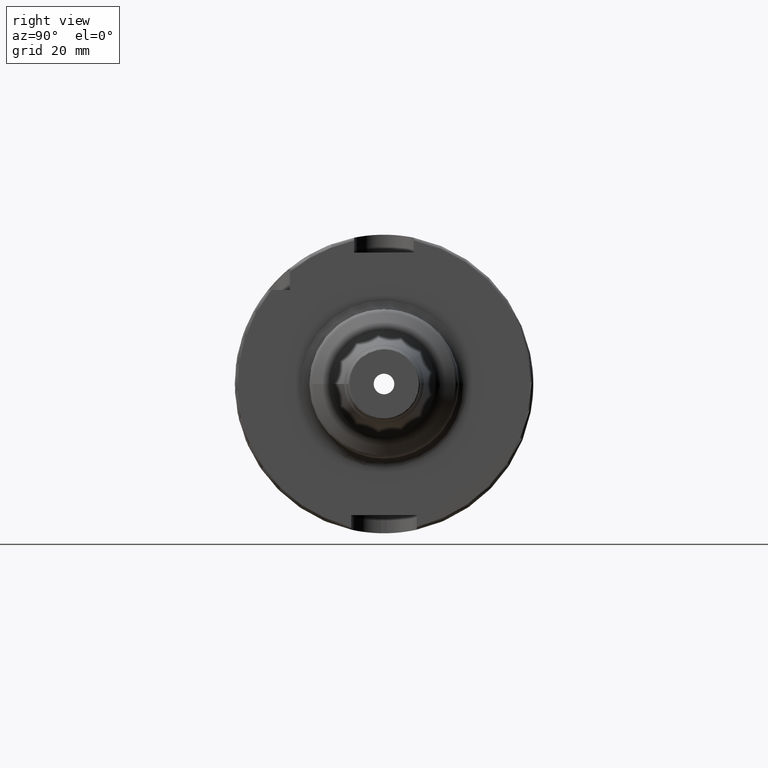
[diagram: clean part render]
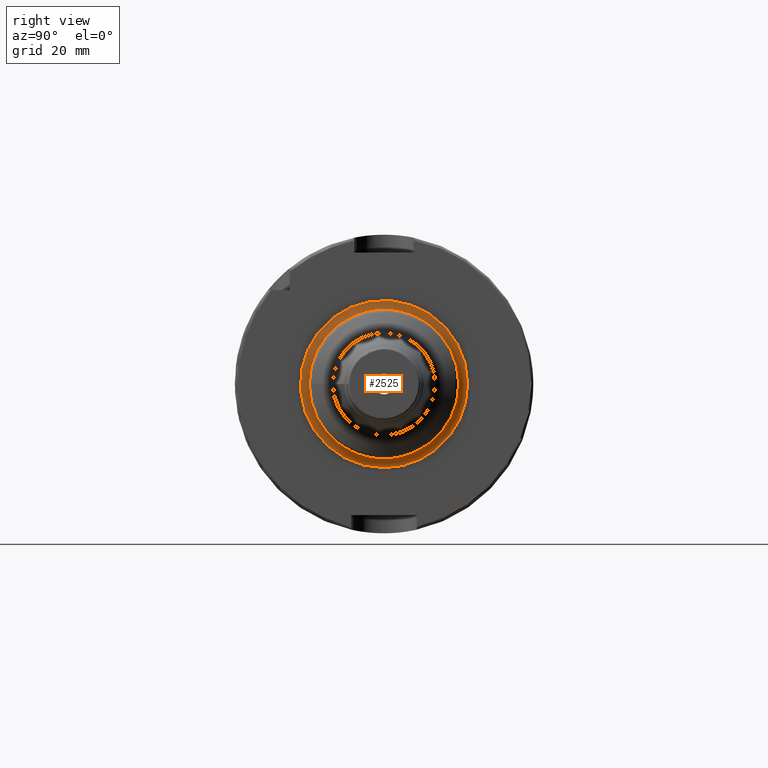
[diagram: same view with one face highlighted and labeled with its STEP entity id]
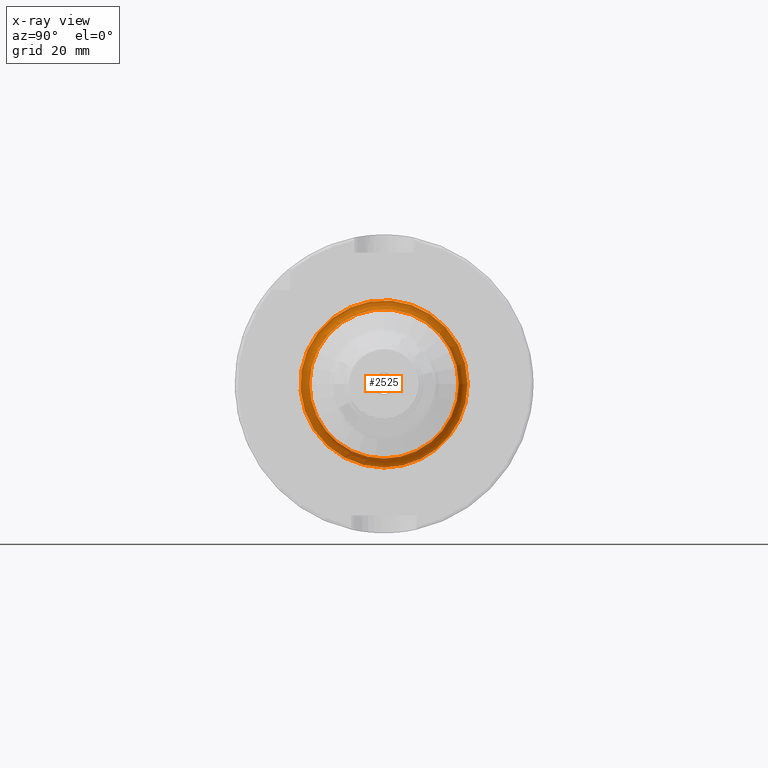
[diagram: x-ray of the same camera — body ghosted, the highlighted face saturated]
A machine part, right view. The second image highlights one B-rep face of the part: STEP entity #2525.
The next image is the same camera in x-ray: the body ghosted, the highlighted face saturated — about 0% of this face is hidden behind the body in this view.
In plain terms, the highlighted toroidal blend (fillet) surface has major radius 28 mm and minor (blend) radius 3 mm.
Its self-contained STEP definition (entity closure, byte-faithful):
#448=FACE_OUTER_BOUND('',#583,.T.);
#583=EDGE_LOOP('',(#1786,#1787,#1788,#1789,#1790,#1791,#1792));
#775=CIRCLE('',#2747,25.);
#776=CIRCLE('',#2748,3.);
#777=CIRCLE('',#2749,28.);
#778=CIRCLE('',#2750,28.);
#779=CIRCLE('',#2751,25.);
#780=CIRCLE('',#2752,25.);
#992=VERTEX_POINT('',#4029);
#993=VERTEX_POINT('',#4030);
#994=VERTEX_POINT('',#4032);
#995=VERTEX_POINT('',#4034);
#996=VERTEX_POINT('',#4037);
#1299=EDGE_CURVE('',#992,#993,#775,.T.);
#1300=EDGE_CURVE('',#993,#994,#776,.T.);
#1301=EDGE_CURVE('',#994,#995,#777,.T.);
#1302=EDGE_CURVE('',#995,#994,#778,.T.);
#1303=EDGE_CURVE('',#993,#996,#779,.T.);
#1304=EDGE_CURVE('',#996,#992,#780,.T.);
#1786=ORIENTED_EDGE('',*,*,#1299,.T.);
#1787=ORIENTED_EDGE('',*,*,#1300,.T.);
#1788=ORIENTED_EDGE('',*,*,#1301,.T.);
#1789=ORIENTED_EDGE('',*,*,#1302,.T.);
#1790=ORIENTED_EDGE('',*,*,#1300,.F.);
#1791=ORIENTED_EDGE('',*,*,#1303,.T.);
#1792=ORIENTED_EDGE('',*,*,#1304,.T.);
#2480=TOROIDAL_SURFACE('',#2746,28.,3.);
#2525=ADVANCED_FACE('',(#448),#2480,.F.);
#2746=AXIS2_PLACEMENT_3D('',#4028,#3209,#3210);
#2747=AXIS2_PLACEMENT_3D('',#4031,#3211,#3212);
#2748=AXIS2_PLACEMENT_3D('',#4033,#3213,#3214);
#2749=AXIS2_PLACEMENT_3D('',#4035,#3215,#3216);
#2750=AXIS2_PLACEMENT_3D('',#4036,#3217,#3218);
#2751=AXIS2_PLACEMENT_3D('',#4038,#3219,#3220);
#2752=AXIS2_PLACEMENT_3D('',#4039,#3221,#3222);
#3209=DIRECTION('center_axis',(-1.,0.,0.));
#3210=DIRECTION('ref_axis',(0.,0.,1.));
#3211=DIRECTION('center_axis',(-1.,0.,0.));
#3212=DIRECTION('ref_axis',(0.,-1.,-1.22464679914735E-16));
#3213=DIRECTION('center_axis',(0.,-1.,1.22464679914735E-16));
#3214=DIRECTION('ref_axis',(0.,-1.22464679914735E-16,-1.));
#3215=DIRECTION('center_axis',(1.,0.,0.));
#3216=DIRECTION('ref_axis',(0.,-1.,-1.22464679914735E-16));
#3217=DIRECTION('center_axis',(1.,0.,0.));
#3218=DIRECTION('ref_axis',(0.,-1.,-1.22464679914735E-16));
#3219=DIRECTION('center_axis',(-1.,0.,0.));
#3220=DIRECTION('ref_axis',(0.,-1.,-1.22464679914735E-16));
#3221=DIRECTION('center_axis',(-1.,0.,0.));
#3222=DIRECTION('ref_axis',(0.,-1.,-1.22464679914735E-16));
#4028=CARTESIAN_POINT('Origin',(32.,0.,0.));
#4029=CARTESIAN_POINT('',(32.,25.,0.));
#4030=CARTESIAN_POINT('',(32.,-3.06161699786838E-15,-25.));
#4031=CARTESIAN_POINT('Origin',(32.,0.,0.));
#4032=CARTESIAN_POINT('',(29.,-3.42901103761259E-15,-28.));
#4033=CARTESIAN_POINT('Origin',(32.,-3.42901103761259E-15,-28.));
#4034=CARTESIAN_POINT('',(29.,28.,6.85802207522518E-15));
#4035=CARTESIAN_POINT('Origin',(29.,0.,0.));
#4036=CARTESIAN_POINT('Origin',(29.,0.,0.));
#4037=CARTESIAN_POINT('',(32.,-25.,-3.06161699786838E-15));
#4038=CARTESIAN_POINT('Origin',(32.,0.,0.));
#4039=CARTESIAN_POINT('Origin',(32.,0.,0.));